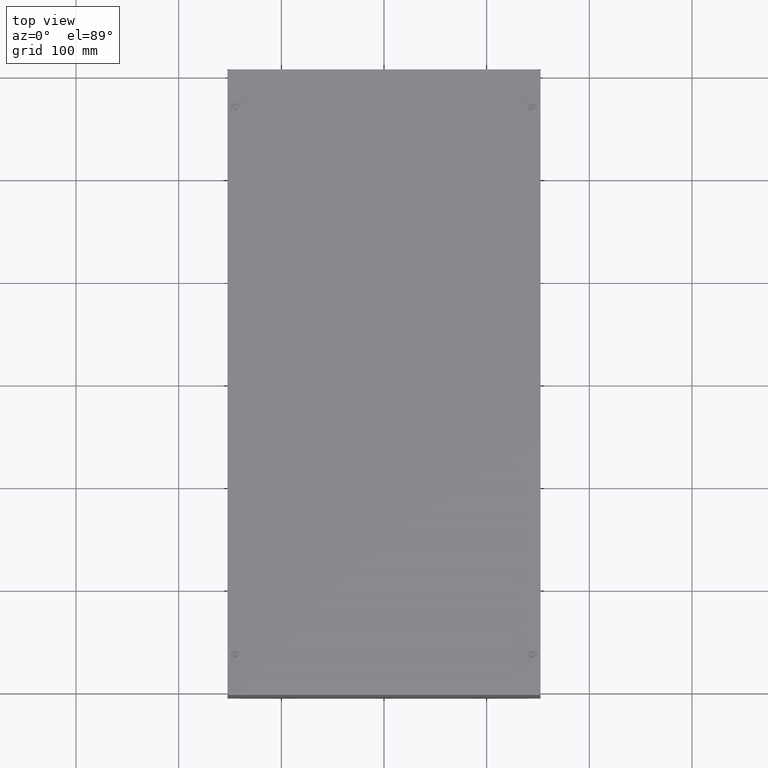
[diagram: clean part render]
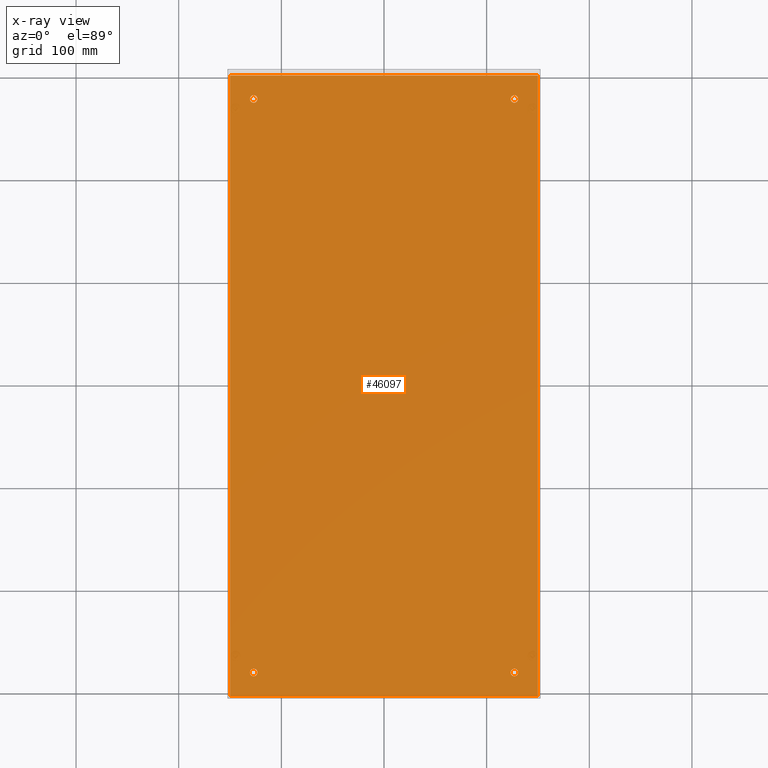
[diagram: x-ray — body ghosted, one internal face saturated and labeled with its STEP entity id]
A machine part, top view, then the same camera in x-ray: the body is ghosted and one INTERNAL B-rep face — a face not visible from any outside direction — is saturated and labeled: STEP entity #46097.
In plain terms, the highlighted planar face has unit normal (0, 0, 1).
Its self-contained STEP definition (entity closure, byte-faithful):
#4094=FACE_BOUND('',#8733,.T.);
#4095=FACE_BOUND('',#8734,.T.);
#4096=FACE_BOUND('',#8735,.T.);
#4097=FACE_BOUND('',#8736,.T.);
#4497=PLANE('',#48898);
#6214=FACE_OUTER_BOUND('',#8732,.T.);
#8732=EDGE_LOOP('',(#33510,#33511,#33512,#33513));
#8733=EDGE_LOOP('',(#33514));
#8734=EDGE_LOOP('',(#33515));
#8735=EDGE_LOOP('',(#33516));
#8736=EDGE_LOOP('',(#33517));
#11698=LINE('',#61704,#16623);
#11699=LINE('',#61706,#16624);
#11703=LINE('',#61712,#16628);
#11704=LINE('',#61713,#16629);
#16623=VECTOR('',#51870,0.393700787401575);
#16624=VECTOR('',#51873,0.393700787401575);
#16628=VECTOR('',#51881,0.393700787401575);
#16629=VECTOR('',#51882,0.393700787401575);
#21117=CIRCLE('',#48593,0.145);
#21119=CIRCLE('',#48596,0.145);
#21121=CIRCLE('',#48599,0.145);
#21123=CIRCLE('',#48602,0.145);
#21447=VERTEX_POINT('',#60226);
#21449=VERTEX_POINT('',#60232);
#21451=VERTEX_POINT('',#60238);
#21453=VERTEX_POINT('',#60244);
#21741=VERTEX_POINT('',#61115);
#21754=VERTEX_POINT('',#61179);
#21774=VERTEX_POINT('',#61276);
#21776=VERTEX_POINT('',#61282);
#25820=EDGE_CURVE('',#21447,#21447,#21117,.T.);
#25823=EDGE_CURVE('',#21449,#21449,#21119,.T.);
#25826=EDGE_CURVE('',#21451,#21451,#21121,.T.);
#25829=EDGE_CURVE('',#21453,#21453,#21123,.T.);
#26359=EDGE_CURVE('',#21754,#21774,#11698,.T.);
#26360=EDGE_CURVE('',#21776,#21754,#11699,.T.);
#26364=EDGE_CURVE('',#21774,#21741,#11703,.T.);
#26365=EDGE_CURVE('',#21741,#21776,#11704,.T.);
#33510=ORIENTED_EDGE('',*,*,#26359,.T.);
#33511=ORIENTED_EDGE('',*,*,#26364,.T.);
#33512=ORIENTED_EDGE('',*,*,#26365,.T.);
#33513=ORIENTED_EDGE('',*,*,#26360,.T.);
#33514=ORIENTED_EDGE('',*,*,#25820,.T.);
#33515=ORIENTED_EDGE('',*,*,#25823,.T.);
#33516=ORIENTED_EDGE('',*,*,#25826,.T.);
#33517=ORIENTED_EDGE('',*,*,#25829,.T.);
#46097=ADVANCED_FACE('',(#6214,#4094,#4095,#4096,#4097),#4497,.T.);
#48593=AXIS2_PLACEMENT_3D('',#60227,#50833,#50834);
#48596=AXIS2_PLACEMENT_3D('',#60233,#50840,#50841);
#48599=AXIS2_PLACEMENT_3D('',#60239,#50847,#50848);
#48602=AXIS2_PLACEMENT_3D('',#60245,#50854,#50855);
#48898=AXIS2_PLACEMENT_3D('',#61711,#51879,#51880);
#50833=DIRECTION('center_axis',(0.,0.,-1.));
#50834=DIRECTION('ref_axis',(1.,2.37028668489426E-16,0.));
#50840=DIRECTION('center_axis',(0.,0.,-1.));
#50841=DIRECTION('ref_axis',(1.,2.37028668489426E-16,0.));
#50847=DIRECTION('center_axis',(0.,0.,-1.));
#50848=DIRECTION('ref_axis',(1.,2.37028668489426E-16,0.));
#50854=DIRECTION('center_axis',(0.,0.,-1.));
#50855=DIRECTION('ref_axis',(1.,2.37028668489426E-16,0.));
#51870=DIRECTION('',(0.,-1.,0.));
#51873=DIRECTION('',(-1.,0.,0.));
#51879=DIRECTION('center_axis',(0.,0.,1.));
#51880=DIRECTION('ref_axis',(1.,0.,0.));
#51881=DIRECTION('',(1.,0.,0.));
#51882=DIRECTION('',(0.,1.,0.));
#60226=CARTESIAN_POINT('',(4.855,-11.,0.068));
#60227=CARTESIAN_POINT('Origin',(5.,-11.,0.068));
#60232=CARTESIAN_POINT('',(4.855,11.,0.068));
#60233=CARTESIAN_POINT('Origin',(5.,11.,0.068));
#60238=CARTESIAN_POINT('',(-5.145,11.,0.068));
#60239=CARTESIAN_POINT('Origin',(-5.,11.,0.068));
#60244=CARTESIAN_POINT('',(-5.145,-11.,0.068));
#60245=CARTESIAN_POINT('Origin',(-5.,-11.,0.068));
#61115=CARTESIAN_POINT('',(5.901,-11.901,0.068));
#61179=CARTESIAN_POINT('',(-5.901,11.901,0.068));
#61276=CARTESIAN_POINT('',(-5.901,-11.901,0.068));
#61282=CARTESIAN_POINT('',(5.901,11.901,0.068));
#61704=CARTESIAN_POINT('',(-5.901,5.9505,0.068));
#61706=CARTESIAN_POINT('',(3.,11.901,0.068));
#61711=CARTESIAN_POINT('Origin',(0.,0.,0.068));
#61712=CARTESIAN_POINT('',(-3.,-11.901,0.068));
#61713=CARTESIAN_POINT('',(5.901,-5.9505,0.068));